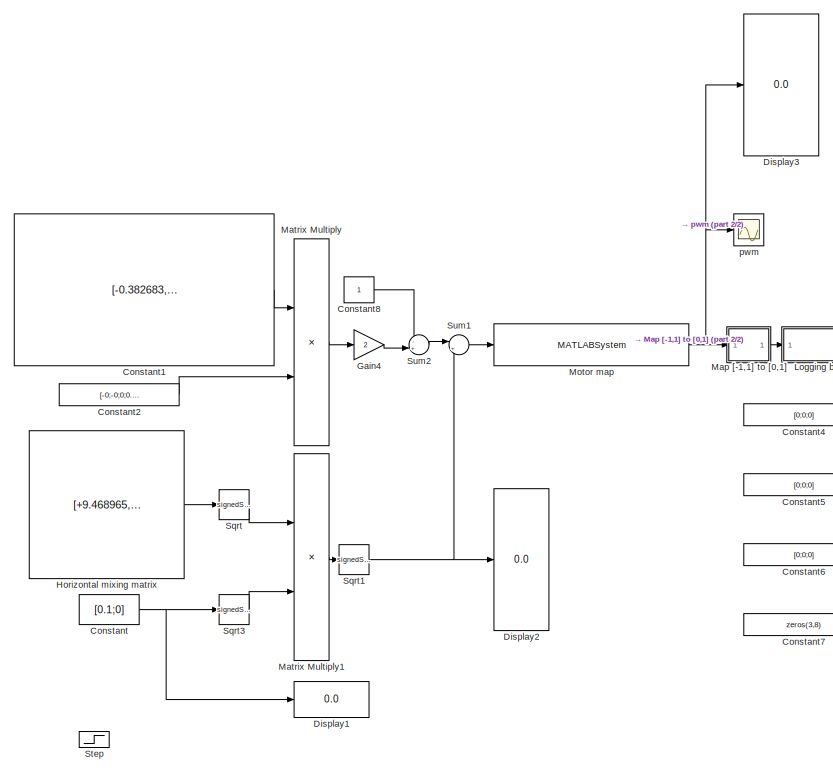
[diagram: root canvas - part 1/2, middle left region]
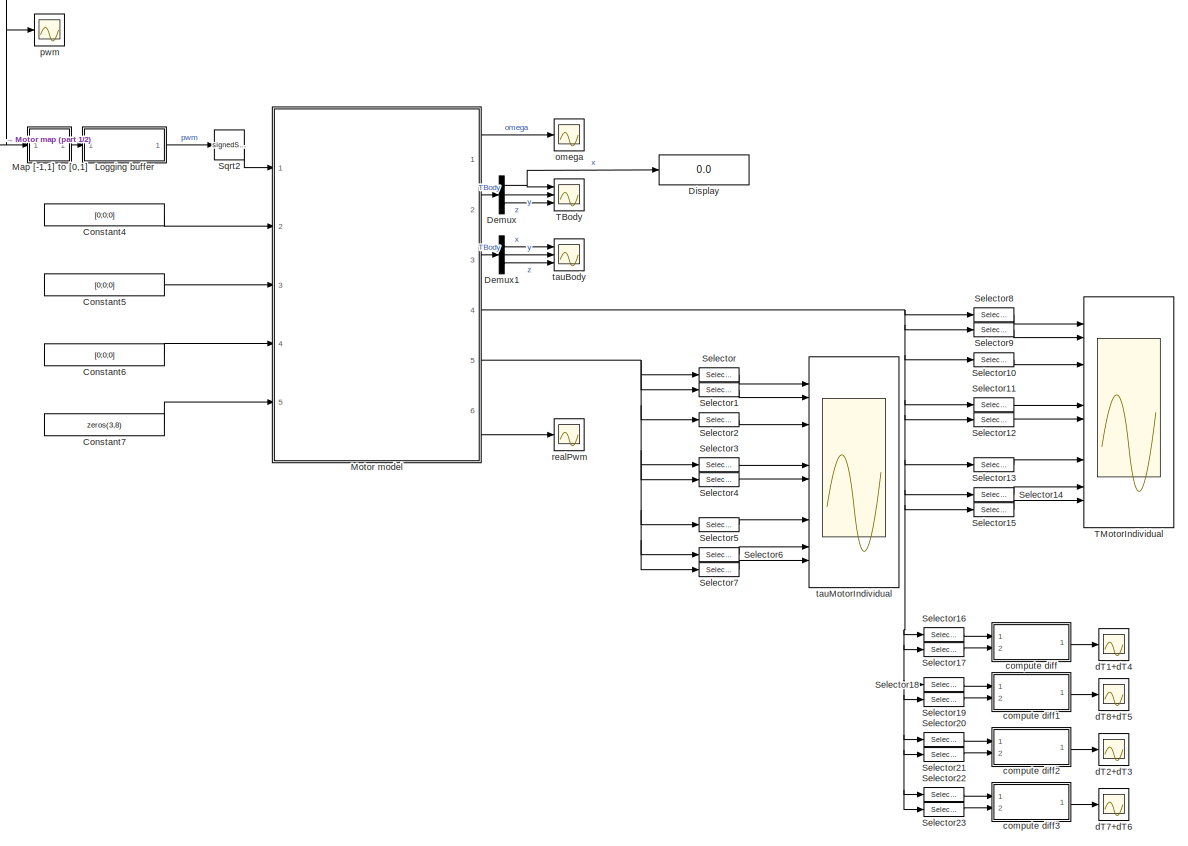
[diagram: root canvas - part 2/2, right side, full height]
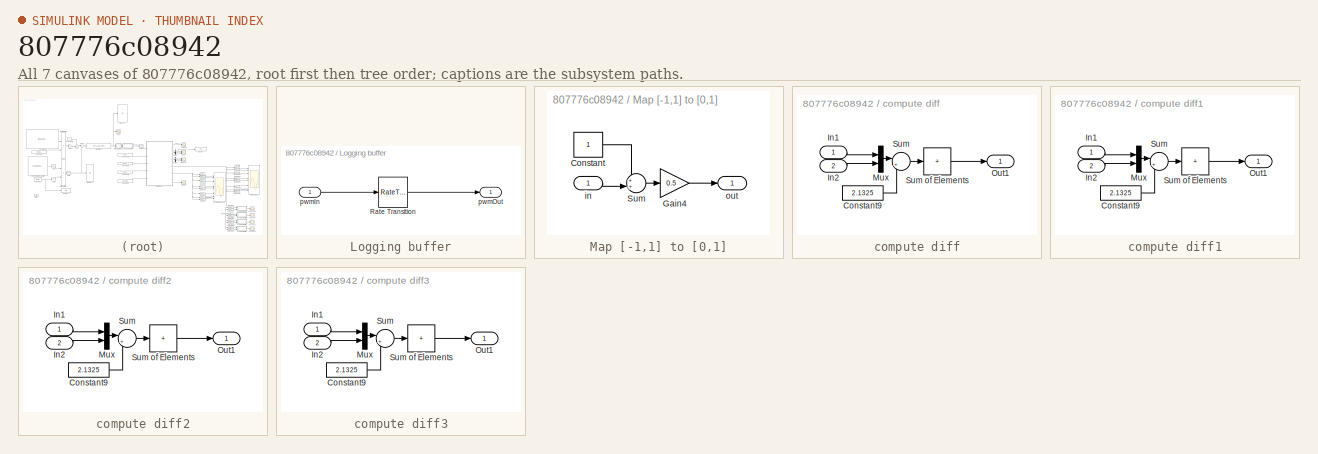
[diagram: thumbnail index - all 7 canvases of the model, root first then tree order]
MODEL slx_807776c08942
KIND model
CONFIG AbsTol = auto
CONFIG EnableMultiTasking = off
CONFIG FixedStep = auto
CONFIG MaxStep = auto
CONFIG MinStep = auto
CONFIG RelTol = 1e-3
CONFIG SampleTimeConstraint = Unconstrained
CONFIG SolverName = VariableStepAuto
CONFIG StartTime = 0.0
CONFIG StopTime = 10.0
BLOCK [Constant] Constant
  Value = [0.1;0]
BLOCK [Constant] Constant1
  Value = [-0.382683,  0.923880,  1.000000,  1.000000 ;\n  0.382683, -0.923880,  1.000000,  1.000000 ;\n -0.923880,  0.382683, -1.000000,  1.000000 ;\n -0.382683, -0.923880, -1.000000,  1.000000 ;\n  0.382683,  0.923880, -1.000000,  1.000000 ;\n  0.923880, -0.382683, -1.000000,  1.000000 ;\n  0.923880,  0.382683,  1.000000,  1.000000 ;\n -0.923880, -0.382683,  1.000000,  1.000000 ]
BLOCK [Constant] Constant2
  Value = [-0;-0;0;0.5]
BLOCK [Constant] Constant4
  Value = [0;0;0]
BLOCK [Constant] Constant5
  Value = [0;0;0]
BLOCK [Constant] Constant6
  Value = [0;0;0]
BLOCK [Constant] Constant7
  Value = zeros(3,8)
BLOCK [Constant] Constant8
BLOCK [Demux] Demux
  Outputs = 3
  Ports = [1, 3]
BLOCK [Demux] Demux1
  Outputs = 3
  Ports = [1, 3]
BLOCK [Display] Display
  Decimation = 1
  Ports = [1]
BLOCK [Display] Display1
  Decimation = 1
  Ports = [1]
BLOCK [Display] Display2
  Decimation = 1
  Ports = [1]
BLOCK [Display] Display3
  Decimation = 1
  Ports = [1]
BLOCK [Gain] Gain4
  Gain = 2
BLOCK [Constant] Horizontal mixing matrix
  Value = [+9.468965, -22.860105;\n -9.468965, +22.860105;\n -22.860105, +9.468965;\n -9.468965, -22.860105;\n +9.468965, +22.860105;\n +22.860105, -9.468965;\n -22.860105, -9.468965;\n +22.860105, +9.468965]
BLOCK [SubSystem] Logging buffer
  Ports = [1, 1]
  RequestExecContextInheritance = off
BLOCK [RateTransition] Logging buffer/Rate Transition
  SCDEnableBlockLinearizationSpecification = on
BLOCK [Inport] Logging buffer/pwmIn
BLOCK [Outport] Logging buffer/pwmOut
  VectorParamsAs1DForOutWhenUnconnected = off
BLOCK [SubSystem] Map [-1,1] to [0,1]
  Ports = [1, 1]
  RequestExecContextInheritance = off
BLOCK [Constant] Map [-1,1] to [0,1]/Constant
BLOCK [Gain] Map [-1,1] to [0,1]/Gain4
  Gain = 0.5
BLOCK [Sum] Map [-1,1] to [0,1]/Sum
  Inputs = ++|
  Ports = [2, 1]
BLOCK [Inport] Map [-1,1] to [0,1]/in
BLOCK [Outport] Map [-1,1] to [0,1]/out
  VectorParamsAs1DForOutWhenUnconnected = off
BLOCK [Product] Matrix Multiply
  Multiplication = Matrix(*)
  Ports = [2, 1]
BLOCK [Product] Matrix Multiply1
  Multiplication = Matrix(*)
  Ports = [2, 1]
BLOCK [MATLABSystem] Motor map
  MaskDisplay = disp(['MOTOR' char(10) 'MAP' char(10) 'octa_x']);\nport_label('input',1,'px4PWM');\nport_label('output',1,'simPWM');
  MaskType = MotorMap
  Ports = [1, 1]
  SimulateUsing = Code generation
  System = MotorMap
  airframeConfig = 5
BLOCK [ModelReference] Motor model
  ModelNameDialog = MotorModelAIAAv3
  ModelReferenceVersion = 5.2
  Ports = [5, 6]
BLOCK [Selector] Selector
  IndexOptions = Select all,Index vector (dialog)
  Indices = 3,7
  InputPortWidth = [8,3]
  NumberOfDimensions = 2
  OutputSizes = 1,1
  Ports = [1, 1]
BLOCK [Selector] Selector1
  IndexOptions = Select all,Index vector (dialog)
  Indices = 3,6
  InputPortWidth = [8,3]
  NumberOfDimensions = 2
  OutputSizes = 1,1
  Ports = [1, 1]
BLOCK [Selector] Selector10
  IndexOptions = Select all,Index vector (dialog)
  Indices = 3,8
  InputPortWidth = [8,3]
  NumberOfDimensions = 2
  OutputSizes = 1,1
  Ports = [1, 1]
BLOCK [Selector] Selector11
  IndexOptions = Select all,Index vector (dialog)
  Indices = 3,5
  InputPortWidth = [8,3]
  NumberOfDimensions = 2
  OutputSizes = 1,1
  Ports = [1, 1]
BLOCK [Selector] Selector12
  IndexOptions = Select all,Index vector (dialog)
  Indices = 3,1
  InputPortWidth = [8,3]
  NumberOfDimensions = 2
  OutputSizes = 1,1
  Ports = [1, 1]
BLOCK [Selector] Selector13
  IndexOptions = Select all,Index vector (dialog)
  Indices = 3,4
  InputPortWidth = [8,3]
  NumberOfDimensions = 2
  OutputSizes = 1,1
  Ports = [1, 1]
BLOCK [Selector] Selector14
  IndexOptions = Select all,Index vector (dialog)
  Indices = 3,2
  InputPortWidth = [8,3]
  NumberOfDimensions = 2
  OutputSizes = 1,1
  Ports = [1, 1]
BLOCK [Selector] Selector15
  IndexOptions = Select all,Index vector (dialog)
  Indices = 3,3
  InputPortWidth = [8,3]
  NumberOfDimensions = 2
  OutputSizes = 1,1
  Ports = [1, 1]
BLOCK [Selector] Selector16
  IndexOptions = Index vector (dialog),Index vector (dialog)
  Indices = 3,1
  InputPortWidth = [8,3]
  NumberOfDimensions = 2
  OutputSizes = 1,1
  Ports = [1, 1]
BLOCK [Selector] Selector17
  IndexOptions = Index vector (dialog),Index vector (dialog)
  Indices = 3,4
  InputPortWidth = [8,3]
  NumberOfDimensions = 2
  OutputSizes = 1,1
  Ports = [1, 1]
BLOCK [Selector] Selector18
  IndexOptions = Index vector (dialog),Index vector (dialog)
  Indices = 3,8
  InputPortWidth = [8,3]
  NumberOfDimensions = 2
  OutputSizes = 1,1
  Ports = [1, 1]
BLOCK [Selector] Selector19
  IndexOptions = Index vector (dialog),Index vector (dialog)
  Indices = 3,5
  InputPortWidth = [8,3]
  NumberOfDimensions = 2
  OutputSizes = 1,1
  Ports = [1, 1]
BLOCK [Selector] Selector2
  IndexOptions = Select all,Index vector (dialog)
  Indices = 3,8
  InputPortWidth = [8,3]
  NumberOfDimensions = 2
  OutputSizes = 1,1
  Ports = [1, 1]
BLOCK [Selector] Selector20
  IndexOptions = Index vector (dialog),Index vector (dialog)
  Indices = 3,2
  InputPortWidth = [8,3]
  NumberOfDimensions = 2
  OutputSizes = 1,1
  Ports = [1, 1]
BLOCK [Selector] Selector21
  IndexOptions = Index vector (dialog),Index vector (dialog)
  Indices = 3,3
  InputPortWidth = [8,3]
  NumberOfDimensions = 2
  OutputSizes = 1,1
  Ports = [1, 1]
BLOCK [Selector] Selector22
  IndexOptions = Index vector (dialog),Index vector (dialog)
  Indices = 3,7
  InputPortWidth = [8,3]
  NumberOfDimensions = 2
  OutputSizes = 1,1
  Ports = [1, 1]
BLOCK [Selector] Selector23
  IndexOptions = Index vector (dialog),Index vector (dialog)
  Indices = 3,6
  InputPortWidth = [8,3]
  NumberOfDimensions = 2
  OutputSizes = 1,1
  Ports = [1, 1]
BLOCK [Selector] Selector3
  IndexOptions = Select all,Index vector (dialog)
  Indices = 3,5
  InputPortWidth = [8,3]
  NumberOfDimensions = 2
  OutputSizes = 1,1
  Ports = [1, 1]
BLOCK [Selector] Selector4
  IndexOptions = Select all,Index vector (dialog)
  Indices = 3,1
  InputPortWidth = [8,3]
  NumberOfDimensions = 2
  OutputSizes = 1,1
  Ports = [1, 1]
BLOCK [Selector] Selector5
  IndexOptions = Select all,Index vector (dialog)
  Indices = 3,4
  InputPortWidth = [8,3]
  NumberOfDimensions = 2
  OutputSizes = 1,1
  Ports = [1, 1]
BLOCK [Selector] Selector6
  IndexOptions = Select all,Index vector (dialog)
  Indices = 3,2
  InputPortWidth = [8,3]
  NumberOfDimensions = 2
  OutputSizes = 1,1
  Ports = [1, 1]
BLOCK [Selector] Selector7
  IndexOptions = Select all,Index vector (dialog)
  Indices = 3,3
  InputPortWidth = [8,3]
  NumberOfDimensions = 2
  OutputSizes = 1,1
  Ports = [1, 1]
BLOCK [Selector] Selector8
  IndexOptions = Select all,Index vector (dialog)
  Indices = 3,7
  InputPortWidth = [8,3]
  NumberOfDimensions = 2
  OutputSizes = 1,1
  Ports = [1, 1]
BLOCK [Selector] Selector9
  IndexOptions = Select all,Index vector (dialog)
  Indices = 3,6
  InputPortWidth = [8,3]
  NumberOfDimensions = 2
  OutputSizes = 1,1
  Ports = [1, 1]
BLOCK [Sqrt] Sqrt
  Commented = through
  Operator = signedSqrt
BLOCK [Sqrt] Sqrt1
  Commented = through
  Operator = signedSqrt
BLOCK [Sqrt] Sqrt2
  Commented = through
  Operator = signedSqrt
BLOCK [Sqrt] Sqrt3
  Commented = through
  Operator = signedSqrt
BLOCK [Step] Step
  After = [0.01;0]
  Before = [0;0]
  SampleTime = 0
  Time = 5
BLOCK [Sum] Sum1
  Inputs = |++
  Ports = [2, 1]
BLOCK [Sum] Sum2
  Inputs = -+|
  Ports = [2, 1]
BLOCK [Scope] TBody
  Floating = off
  NumInputPorts = 3
  Ports = [3]
  ScopeSpecificationString = Simulink.scopes.TimeScopeBlockCfg('CurrentConfiguration', extmgr.ConfigurationSet(extmgr.Configuration('Core','General UI',true),extmgr.Configuration('Core','Source UI',true),extmgr.Configuration('Sources','WiredSimulink',true,'DataLoggingVariableName','ScopeData3'),extmgr.Configuration('Visuals','Time Domain',true,'SerializedDisplays',{struct('MinYLimReal','-0.15603','MaxYLimReal','1.40425','YLab...<+2755ch>
BLOCK [Scope] TMotorIndividual
  Floating = off
  NumInputPorts = 16
  Ports = [16]
  ScopeSpecificationString = Simulink.scopes.TimeScopeBlockCfg('CurrentConfiguration', extmgr.ConfigurationSet(extmgr.Configuration('Core','General UI',true),extmgr.Configuration('Core','Source UI',true),extmgr.Configuration('Sources','WiredSimulink',true,'DataLoggingVariableName','ScopeData1'),extmgr.Configuration('Visuals','Time Domain',true,'SerializedDisplays',{struct('MinYLimReal','-1.00000','MaxYLimReal','1.00000','YLab...<+12677ch>
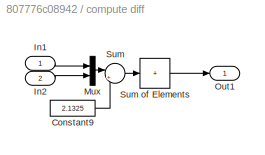
BLOCK [SubSystem] compute diff
  Ports = [2, 1]
  RequestExecContextInheritance = off
BLOCK [Constant] compute diff/Constant9
  Value = 2.1325
BLOCK [Inport] compute diff/In1
BLOCK [Inport] compute diff/In2
  Port = 2
BLOCK [Mux] compute diff/Mux
  DisplayOption = bar
  Inputs = 2
  Ports = [2, 1]
BLOCK [Outport] compute diff/Out1
  VectorParamsAs1DForOutWhenUnconnected = off
BLOCK [Sum] compute diff/Sum
  Inputs = |++
  Ports = [2, 1]
BLOCK [Sum] compute diff/Sum of Elements
  IconShape = rectangular
  Inputs = +
  Ports = [1, 1]
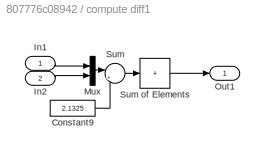
BLOCK [SubSystem] compute diff1
  Ports = [2, 1]
  RequestExecContextInheritance = off
BLOCK [Constant] compute diff1/Constant9
  Value = 2.1325
BLOCK [Inport] compute diff1/In1
BLOCK [Inport] compute diff1/In2
  Port = 2
BLOCK [Mux] compute diff1/Mux
  DisplayOption = bar
  Inputs = 2
  Ports = [2, 1]
BLOCK [Outport] compute diff1/Out1
  VectorParamsAs1DForOutWhenUnconnected = off
BLOCK [Sum] compute diff1/Sum
  Inputs = |++
  Ports = [2, 1]
BLOCK [Sum] compute diff1/Sum of Elements
  IconShape = rectangular
  Inputs = +
  Ports = [1, 1]
BLOCK [SubSystem] compute diff2
  Ports = [2, 1]
  RequestExecContextInheritance = off
BLOCK [Constant] compute diff2/Constant9
  Value = 2.1325
BLOCK [Inport] compute diff2/In1
BLOCK [Inport] compute diff2/In2
  Port = 2
BLOCK [Mux] compute diff2/Mux
  DisplayOption = bar
  Inputs = 2
  Ports = [2, 1]
BLOCK [Outport] compute diff2/Out1
  VectorParamsAs1DForOutWhenUnconnected = off
BLOCK [Sum] compute diff2/Sum
  Inputs = |++
  Ports = [2, 1]
BLOCK [Sum] compute diff2/Sum of Elements
  IconShape = rectangular
  Inputs = +
  Ports = [1, 1]
BLOCK [SubSystem] compute diff3
  Ports = [2, 1]
  RequestExecContextInheritance = off
BLOCK [Constant] compute diff3/Constant9
  Value = 2.1325
BLOCK [Inport] compute diff3/In1
BLOCK [Inport] compute diff3/In2
  Port = 2
BLOCK [Mux] compute diff3/Mux
  DisplayOption = bar
  Inputs = 2
  Ports = [2, 1]
BLOCK [Outport] compute diff3/Out1
  VectorParamsAs1DForOutWhenUnconnected = off
BLOCK [Sum] compute diff3/Sum
  Inputs = |++
  Ports = [2, 1]
BLOCK [Sum] compute diff3/Sum of Elements
  IconShape = rectangular
  Inputs = +
  Ports = [1, 1]
BLOCK [Scope] dT1+dT4
  Floating = off
  NumInputPorts = 1
  Ports = [1]
  ScopeSpecificationString = Simulink.scopes.TimeScopeBlockCfg('CurrentConfiguration', extmgr.ConfigurationSet(extmgr.Configuration('Core','General UI',true),extmgr.Configuration('Core','Source UI',true),extmgr.Configuration('Sources','WiredSimulink',true,'DataLoggingVariableName','ScopeData3'),extmgr.Configuration('Visuals','Time Domain',true,'SerializedDisplays',{struct('MinYLimReal','-0.63672','MaxYLimReal','-0.40757','YLa...<+2273ch>
BLOCK [Scope] dT2+dT3
  Floating = off
  NumInputPorts = 1
  Ports = [1]
  ScopeSpecificationString = Simulink.scopes.TimeScopeBlockCfg('CurrentConfiguration', extmgr.ConfigurationSet(extmgr.Configuration('Core','General UI',true),extmgr.Configuration('Core','Source UI',true),extmgr.Configuration('Sources','WiredSimulink',true,'DataLoggingVariableName','ScopeData5'),extmgr.Configuration('Visuals','Time Domain',true,'SerializedDisplays',{struct('MinYLimReal','-3.27449','MaxYLimReal','-0.31818','YLa...<+2275ch>
BLOCK [Scope] dT7+dT6
  Floating = off
  NumInputPorts = 1
  Ports = [1]
  ScopeSpecificationString = Simulink.scopes.TimeScopeBlockCfg('CurrentConfiguration', extmgr.ConfigurationSet(extmgr.Configuration('Core','General UI',true),extmgr.Configuration('Core','Source UI',true),extmgr.Configuration('Sources','WiredSimulink',true,'DataLoggingVariableName','ScopeData6'),extmgr.Configuration('Visuals','Time Domain',true,'SerializedDisplays',{struct('MinYLimReal','-0.63446','MaxYLimReal','-0.42795','YLa...<+2274ch>
BLOCK [Scope] dT8+dT5
  Floating = off
  NumInputPorts = 1
  Ports = [1]
  ScopeSpecificationString = Simulink.scopes.TimeScopeBlockCfg('CurrentConfiguration', extmgr.ConfigurationSet(extmgr.Configuration('Core','General UI',true),extmgr.Configuration('Core','Source UI',true),extmgr.Configuration('Sources','WiredSimulink',true,'DataLoggingVariableName','ScopeData4'),extmgr.Configuration('Visuals','Time Domain',true,'SerializedDisplays',{struct('MinYLimReal','-0.63446','MaxYLimReal','-0.42795','YLa...<+2273ch>
BLOCK [Scope] omega
  Floating = off
  NumInputPorts = 1
  Ports = [1]
  ScopeSpecificationString = Simulink.scopes.TimeScopeBlockCfg('CurrentConfiguration', extmgr.ConfigurationSet(extmgr.Configuration('Core','General UI',true),extmgr.Configuration('Core','Source UI',true),extmgr.Configuration('Sources','WiredSimulink',true,'DataLoggingVariableName','ScopeData5'),extmgr.Configuration('Visuals','Time Domain',true,'SerializedDisplays',{struct('MinYLimReal','-535.17674','MaxYLimReal','4816.59066',...<+1527ch>
BLOCK [Scope] pwm
  Floating = off
  NumInputPorts = 1
  Ports = [1]
  ScopeSpecificationString = Simulink.scopes.TimeScopeBlockCfg('CurrentConfiguration', extmgr.ConfigurationSet(extmgr.Configuration('Core','General UI',true),extmgr.Configuration('Core','Source UI',true),extmgr.Configuration('Sources','WiredSimulink',true,'DataLoggingVariableName','ScopeData6'),extmgr.Configuration('Visuals','Time Domain',true,'SerializedDisplays',{struct('MinYLimReal','-0.23173','MaxYLimReal','-0.22545','YLa...<+2370ch>
BLOCK [Scope] realPwm
  Floating = off
  NumInputPorts = 1
  Ports = [1]
  ScopeSpecificationString = Simulink.scopes.TimeScopeBlockCfg('CurrentConfiguration', extmgr.ConfigurationSet(extmgr.Configuration('Core','General UI',true),extmgr.Configuration('Core','Source UI',true),extmgr.Configuration('Sources','WiredSimulink',true,'DataLoggingVariableName','ScopeData2'),extmgr.Configuration('Visuals','Time Domain',true,'SerializedDisplays',{struct('MinYLimReal','1134.525','MaxYLimReal','1865.475','YLa...<+2403ch>
BLOCK [Scope] tauBody
  Floating = off
  NumInputPorts = 3
  Ports = [3]
  ScopeSpecificationString = Simulink.scopes.TimeScopeBlockCfg('CurrentConfiguration', extmgr.ConfigurationSet(extmgr.Configuration('Core','General UI',true),extmgr.Configuration('Core','Source UI',true),extmgr.Configuration('Sources','WiredSimulink',true,'DataLoggingVariableName','ScopeData4'),extmgr.Configuration('Visuals','Time Domain',true,'SerializedDisplays',{struct('MinYLimReal','-0.0000000000000007','MaxYLimReal','0.0...<+2789ch>
BLOCK [Scope] tauMotorIndividual
  Floating = off
  NumInputPorts = 16
  Ports = [16]
  ScopeSpecificationString = Simulink.scopes.TimeScopeBlockCfg('CurrentConfiguration', extmgr.ConfigurationSet(extmgr.Configuration('Core','General UI',true),extmgr.Configuration('Core','Source UI',true),extmgr.Configuration('Sources','WiredSimulink',true,'DataLoggingVariableName','ScopeData2'),extmgr.Configuration('Visuals','Time Domain',true,'SerializedDisplays',{struct('MinYLimReal','-1.00000','MaxYLimReal','1.00000','YLab...<+13062ch>
LINE Constant1:1 -> Matrix Multiply:1
LINE Constant2:1 -> Matrix Multiply:2
LINE Constant4:1 -> Motor model:2
LINE Constant5:1 -> Motor model:3
LINE Constant6:1 -> Motor model:4
LINE Constant7:1 -> Motor model:5
LINE Constant8:1 -> Sum2:1
NET Constant:1 -> Display1:1, Sqrt3:1
LINE Demux1:1 -> tauBody:1
LINE Demux1:2 -> tauBody:2
LINE Demux1:3 -> tauBody:3
NET Demux:1 -> Display:1, TBody:1
LINE Demux:2 -> TBody:2
LINE Demux:3 -> TBody:3
LINE Gain4:1 -> Sum2:2
LINE Horizontal mixing matrix:1 -> Sqrt:1
LINE Logging buffer/Rate Transition:1 -> Logging buffer/pwmOut:1
LINE Logging buffer/pwmIn:1 -> Logging buffer/Rate Transition:1
LINE Logging buffer:1 -> Sqrt2:1
LINE Map [-1,1] to [0,1]/Constant:1 -> Map [-1,1] to [0,1]/Sum:1
LINE Map [-1,1] to [0,1]/Gain4:1 -> Map [-1,1] to [0,1]/out:1
LINE Map [-1,1] to [0,1]/Sum:1 -> Map [-1,1] to [0,1]/Gain4:1
LINE Map [-1,1] to [0,1]/in:1 -> Map [-1,1] to [0,1]/Sum:2
LINE Map [-1,1] to [0,1]:1 -> Logging buffer:1
LINE Matrix Multiply1:1 -> Sqrt1:1
LINE Matrix Multiply:1 -> Gain4:1
NET Motor map:1 -> Display3:1, Map [-1,1] to [0,1]:1, pwm:1
LINE Motor model:1 -> omega:1
LINE Motor model:2 -> Demux:1
LINE Motor model:3 -> Demux1:1
NET Motor model:4 -> Selector10:1, Selector11:1, Selector12:1, Selector13:1, Selector14:1, Selector15:1, Selector16:1, Selector17:1, Selector18:1, Selector19:1, Selector20:1, Selector21:1, Selector22:1, Selector23:1, Selector8:1, Selector9:1
NET Motor model:5 -> Selector1:1, Selector2:1, Selector3:1, Selector4:1, Selector5:1, Selector6:1, Selector7:1, Selector:1
LINE Motor model:6 -> realPwm:1
LINE Selector10:1 -> TMotorIndividual:5
LINE Selector11:1 -> TMotorIndividual:8
LINE Selector12:1 -> TMotorIndividual:9
LINE Selector13:1 -> TMotorIndividual:12
LINE Selector14:1 -> TMotorIndividual:14
LINE Selector15:1 -> TMotorIndividual:15
LINE Selector16:1 -> compute diff:1
LINE Selector17:1 -> compute diff:2
LINE Selector18:1 -> compute diff1:1
LINE Selector19:1 -> compute diff1:2
LINE Selector1:1 -> tauMotorIndividual:3
LINE Selector20:1 -> compute diff2:1
LINE Selector21:1 -> compute diff2:2
LINE Selector22:1 -> compute diff3:1
LINE Selector23:1 -> compute diff3:2
LINE Selector2:1 -> tauMotorIndividual:5
LINE Selector3:1 -> tauMotorIndividual:8
LINE Selector4:1 -> tauMotorIndividual:9
LINE Selector5:1 -> tauMotorIndividual:12
LINE Selector6:1 -> tauMotorIndividual:14
LINE Selector7:1 -> tauMotorIndividual:15
LINE Selector8:1 -> TMotorIndividual:2
LINE Selector9:1 -> TMotorIndividual:3
LINE Selector:1 -> tauMotorIndividual:2
NET Sqrt1:1 -> Display2:1, Sum1:2
LINE Sqrt2:1 -> Motor model:1
LINE Sqrt3:1 -> Matrix Multiply1:2
LINE Sqrt:1 -> Matrix Multiply1:1
LINE Sum1:1 -> Motor map:1
LINE Sum2:1 -> Sum1:1
LINE compute diff/Constant9:1 -> compute diff/Sum:2
LINE compute diff/In1:1 -> compute diff/Mux:1
LINE compute diff/In2:1 -> compute diff/Mux:2
LINE compute diff/Mux:1 -> compute diff/Sum:1
LINE compute diff/Sum of Elements:1 -> compute diff/Out1:1
LINE compute diff/Sum:1 -> compute diff/Sum of Elements:1
LINE compute diff1/Constant9:1 -> compute diff1/Sum:2
LINE compute diff1/In1:1 -> compute diff1/Mux:1
LINE compute diff1/In2:1 -> compute diff1/Mux:2
LINE compute diff1/Mux:1 -> compute diff1/Sum:1
LINE compute diff1/Sum of Elements:1 -> compute diff1/Out1:1
LINE compute diff1/Sum:1 -> compute diff1/Sum of Elements:1
LINE compute diff1:1 -> dT8+dT5:1
LINE compute diff2/Constant9:1 -> compute diff2/Sum:2
LINE compute diff2/In1:1 -> compute diff2/Mux:1
LINE compute diff2/In2:1 -> compute diff2/Mux:2
LINE compute diff2/Mux:1 -> compute diff2/Sum:1
LINE compute diff2/Sum of Elements:1 -> compute diff2/Out1:1
LINE compute diff2/Sum:1 -> compute diff2/Sum of Elements:1
LINE compute diff2:1 -> dT2+dT3:1
LINE compute diff3/Constant9:1 -> compute diff3/Sum:2
LINE compute diff3/In1:1 -> compute diff3/Mux:1
LINE compute diff3/In2:1 -> compute diff3/Mux:2
LINE compute diff3/Mux:1 -> compute diff3/Sum:1
LINE compute diff3/Sum of Elements:1 -> compute diff3/Out1:1
LINE compute diff3/Sum:1 -> compute diff3/Sum of Elements:1
LINE compute diff3:1 -> dT7+dT6:1
LINE compute diff:1 -> dT1+dT4:1
note: NET lines group one-source signal fan-out (src -> all destinations, sorted); 1:1 wires keep LINE
